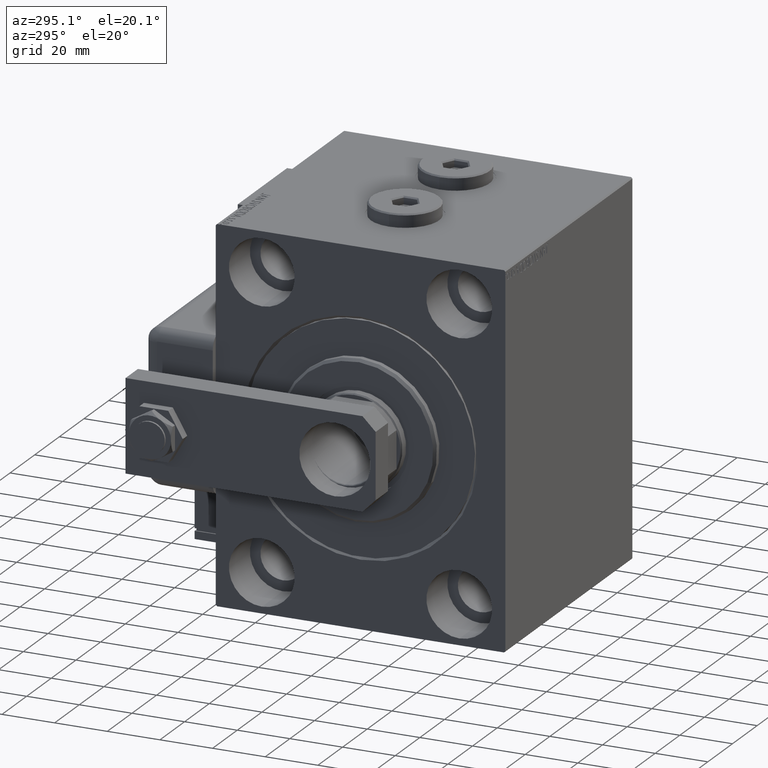
[diagram: clean part render]
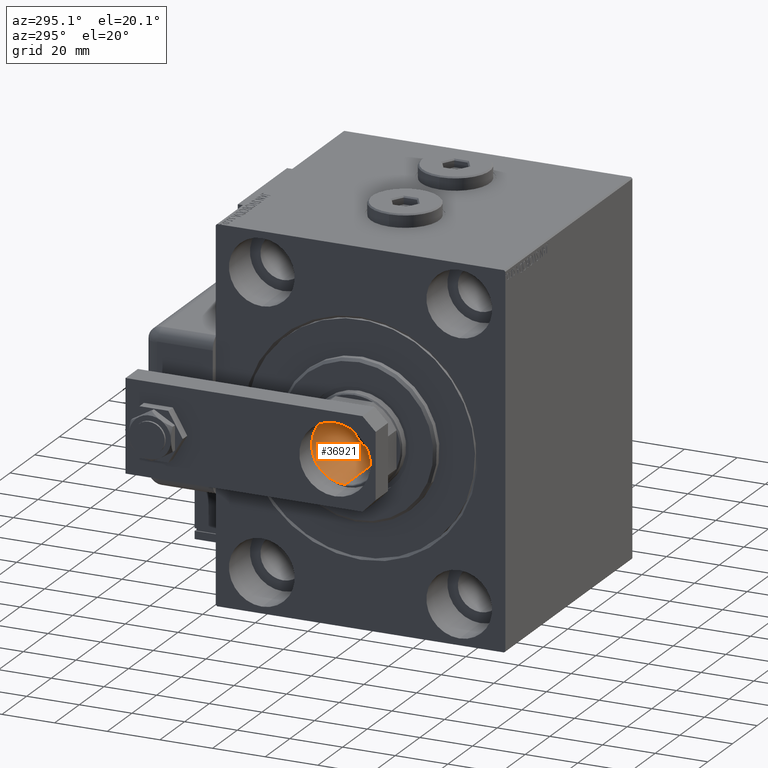
[diagram: same view with one face highlighted and labeled with its STEP entity id]
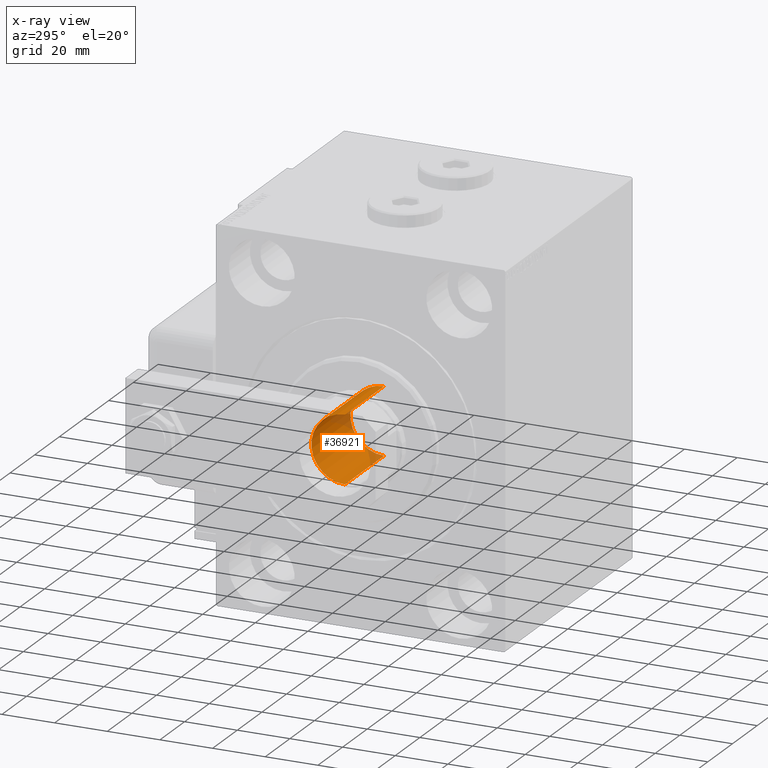
[diagram: x-ray of the same camera — body ghosted, the highlighted face saturated]
A machine part, auxiliary view. The second image highlights one B-rep face of the part: STEP entity #36921.
The next image is the same camera in x-ray: the body ghosted, the highlighted face saturated — about 10% of this face is hidden behind the body in this view.
In plain terms, the highlighted cylindrical surface (partial cylindrical patch) has radius 12.75 mm, axis along (-1, 0, 0).
Its self-contained STEP definition (entity closure, byte-faithful):
#300 = CARTESIAN_POINT ( 'NONE',  ( 12.74999999999999467, 0.000000000000000000, 32.00000000000000000 ) ) ;
#374 = EDGE_CURVE ( 'NONE', #28964, #1963, #56933, .T. ) ;
#1288 = VECTOR ( 'NONE', #22344, 1000.000000000000000 ) ;
#1963 = VERTEX_POINT ( 'NONE', #48185 ) ;
#2536 = VERTEX_POINT ( 'NONE', #28755 ) ;
#2837 = DIRECTION ( 'NONE',  ( -0.000000000000000000, -0.000000000000000000, 1.000000000000000000 ) ) ;
#5470 = AXIS2_PLACEMENT_3D ( 'NONE', #7103, #16633, #44059 ) ;
#6474 = AXIS2_PLACEMENT_3D ( 'NONE', #32041, #2837, #21603 ) ;
#6922 = EDGE_CURVE ( 'NONE', #2536, #1963, #15306, .T. ) ;
#7103 = CARTESIAN_POINT ( 'NONE',  ( 0.000000000000000000, 0.000000000000000000, 63.70000000000000995 ) ) ;
#7789 = DIRECTION ( 'NONE',  ( 1.000000000000000000, 0.000000000000000000, 0.000000000000000000 ) ) ;
#9924 = ORIENTED_EDGE ( 'NONE', *, *, #374, .F. ) ;
#15009 = ORIENTED_EDGE ( 'NONE', *, *, #46531, .F. ) ;
#15306 = CIRCLE ( 'NONE', #5470, 12.74999999999999645 ) ;
#16633 = DIRECTION ( 'NONE',  ( 0.000000000000000000, 0.000000000000000000, 1.000000000000000000 ) ) ;
#16928 = AXIS2_PLACEMENT_3D ( 'NONE', #56635, #50000, #7789 ) ;
#19054 = CYLINDRICAL_SURFACE ( 'NONE', #16928, 12.74999999999999645 ) ;
#20679 = VERTEX_POINT ( 'NONE', #300 ) ;
#21603 = DIRECTION ( 'NONE',  ( 1.000000000000000000, 0.000000000000000000, 0.000000000000000000 ) ) ;
#22344 = DIRECTION ( 'NONE',  ( -0.000000000000000000, -0.000000000000000000, 1.000000000000000000 ) ) ;
#26679 = LINE ( 'NONE', #59328, #1288 ) ;
#28755 = CARTESIAN_POINT ( 'NONE',  ( 12.74999999999999645, 0.000000000000000000, 63.70000000000000995 ) ) ;
#28964 = VERTEX_POINT ( 'NONE', #36311 ) ;
#31171 = FACE_OUTER_BOUND ( 'NONE', #54966, .T. ) ;
#32041 = CARTESIAN_POINT ( 'NONE',  ( 0.000000000000000000, 0.000000000000000000, 32.00000000000000000 ) ) ;
#35963 = CIRCLE ( 'NONE', #6474, 12.74999999999999467 ) ;
#36311 = CARTESIAN_POINT ( 'NONE',  ( -12.74999999999999467, 1.561424668912874519E-15, 32.00000000000000000 ) ) ;
#36442 = ORIENTED_EDGE ( 'NONE', *, *, #39659, .T. ) ;
#36921 = ADVANCED_FACE ( 'NONE', ( #31171 ), #19054, .F. ) ;
#37809 = ORIENTED_EDGE ( 'NONE', *, *, #6922, .T. ) ;
#39659 = EDGE_CURVE ( 'NONE', #20679, #2536, #26679, .T. ) ;
#42741 = CARTESIAN_POINT ( 'NONE',  ( -12.74999999999999645, 1.561424668912874717E-15, 64.00000000000000000 ) ) ;
#44059 = DIRECTION ( 'NONE',  ( 1.000000000000000000, 0.000000000000000000, 0.000000000000000000 ) ) ;
#46531 = EDGE_CURVE ( 'NONE', #20679, #28964, #35963, .T. ) ;
#48185 = CARTESIAN_POINT ( 'NONE',  ( -12.74999999999999645, 1.561424668912874717E-15, 63.70000000000000995 ) ) ;
#50000 = DIRECTION ( 'NONE',  ( -0.000000000000000000, -0.000000000000000000, 1.000000000000000000 ) ) ;
#54966 = EDGE_LOOP ( 'NONE', ( #9924, #15009, #36442, #37809 ) ) ;
#55718 = VECTOR ( 'NONE', #56316, 1000.000000000000000 ) ;
#56316 = DIRECTION ( 'NONE',  ( -0.000000000000000000, -0.000000000000000000, 1.000000000000000000 ) ) ;
#56635 = CARTESIAN_POINT ( 'NONE',  ( 0.000000000000000000, 0.000000000000000000, 64.00000000000000000 ) ) ;
#56933 = LINE ( 'NONE', #42741, #55718 ) ;
#59328 = CARTESIAN_POINT ( 'NONE',  ( 12.74999999999999645, 0.000000000000000000, 64.00000000000000000 ) ) ;